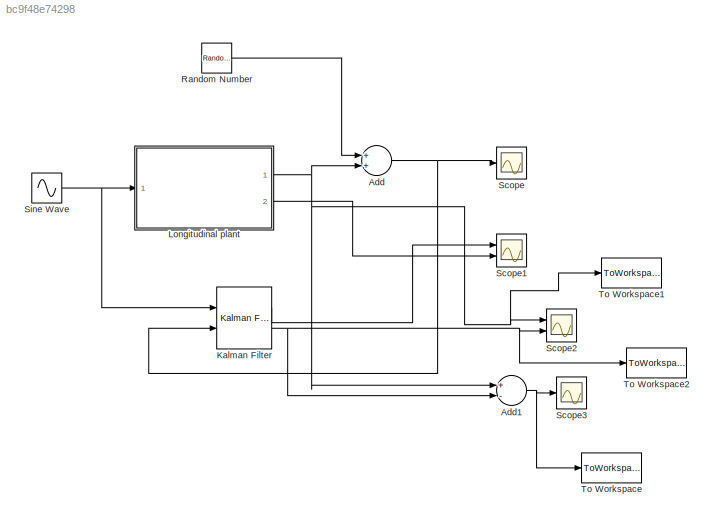
MODEL slx_bc9f48e74298
KIND model
CONFIG AbsTol = auto
CONFIG EnableMultiTasking = off
CONFIG FixedStep = auto
CONFIG MaxStep = auto
CONFIG MinStep = auto
CONFIG RelTol = 1e-3
CONFIG SampleTimeConstraint = Unconstrained
CONFIG Solver = VariableStepAuto
CONFIG SolverName = VariableStepAuto
CONFIG StartTime = 0.0
CONFIG StopTime = 100
BLOCK [Sum] Add
  InputSameDT = off
  OutDataTypeStr = Inherit: Inherit via internal rule
  Ports = [2, 1]
  SaturateOnIntegerOverflow = off
BLOCK [Sum] Add1
  InputSameDT = off
  Inputs = +-
  OutDataTypeStr = Inherit: Inherit via internal rule
  Ports = [2, 1]
  SaturateOnIntegerOverflow = off
BLOCK [Reference] Kalman Filter  REF=ctrlSharedLib/Kalman Filter
  Ports = [2, 2]
  SourceBlock = ctrlSharedLib/Kalman Filter
  SourceType = ctrlKalmanFilter
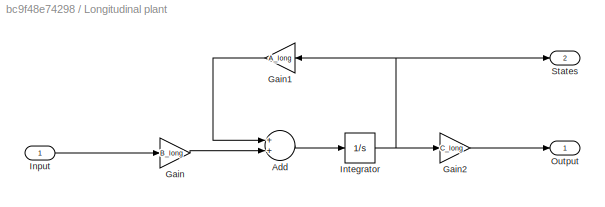
BLOCK [SubSystem] Longitudinal plant
  Ports = [1, 2]
  RequestExecContextInheritance = off
  Variant = off
BLOCK [Sum] Longitudinal plant/Add
  InputSameDT = off
  OutDataTypeStr = Inherit: Inherit via internal rule
  Ports = [2, 1]
  SaturateOnIntegerOverflow = off
BLOCK [Gain] Longitudinal plant/Gain
  Gain = B_long
  Multiplication = Matrix(K*u)
  OutDataTypeStr = Inherit: Inherit via internal rule
  ParamDataTypeStr = Inherit: Inherit via internal rule
  SaturateOnIntegerOverflow = off
BLOCK [Gain] Longitudinal plant/Gain1
  Gain = A_long
  Multiplication = Matrix(K*u)
  OutDataTypeStr = Inherit: Inherit via internal rule
  ParamDataTypeStr = Inherit: Inherit via internal rule
  SaturateOnIntegerOverflow = off
BLOCK [Gain] Longitudinal plant/Gain2
  Gain = C_long
  Multiplication = Matrix(K*u)
  OutDataTypeStr = Inherit: Inherit via internal rule
  ParamDataTypeStr = Inherit: Inherit via internal rule
  SaturateOnIntegerOverflow = off
BLOCK [Inport] Longitudinal plant/Input
  IconDisplay = Port number
BLOCK [Integrator] Longitudinal plant/Integrator
  Ports = [1, 1]
BLOCK [Outport] Longitudinal plant/Output
  IconDisplay = Port number
BLOCK [Outport] Longitudinal plant/States
  IconDisplay = Port number
  Port = 2
BLOCK [RandomNumber] Random Number
  SampleTime = 0.01
  Variance = 1e-8
BLOCK [Scope] Scope
  NumInputPorts = 1
  Ports = [1]
  ScopeSpecificationString = Simulink.scopes.TimeScopeBlockCfg('CurrentConfiguration', extmgr.ConfigurationSet(extmgr.Configuration('Core','General UI',true),extmgr.Configuration('Core','Source UI',true),extmgr.Configuration('Sources','WiredSimulink',true),extmgr.Configuration('Visuals','Time Domain',true,'SerializedDisplays',{struct('MinYLimReal','-0.00036','MaxYLimReal','0.00095','YLabelReal','','MinYLimMag','0.00000','MaxY...<+1356ch>
BLOCK [Scope] Scope1
  NumInputPorts = 2
  Ports = [2]
  ScopeSpecificationString = Simulink.scopes.TimeScopeBlockCfg('CurrentConfiguration', extmgr.ConfigurationSet(extmgr.Configuration('Core','General UI',true),extmgr.Configuration('Core','Source UI',true),extmgr.Configuration('Sources','WiredSimulink',true,'DataLoggingVariableName','ScopeData1'),extmgr.Configuration('Visuals','Time Domain',true,'SerializedDisplays',{struct('MinYLimReal','-0.22962','MaxYLimReal','0.18452','YLab...<+1543ch>
BLOCK [Scope] Scope2
  NumInputPorts = 2
  Ports = [2]
  ScopeSpecificationString = Simulink.scopes.TimeScopeBlockCfg('CurrentConfiguration', extmgr.ConfigurationSet(extmgr.Configuration('Core','General UI',true),extmgr.Configuration('Core','Source UI',true),extmgr.Configuration('Sources','WiredSimulink',true,'DataLoggingVariableName','ScopeData1'),extmgr.Configuration('Visuals','Time Domain',true,'SerializedDisplays',{struct('MinYLimReal','-0.00007','MaxYLimReal','0.00061','YLab...<+1501ch>
BLOCK [Scope] Scope3
  NumInputPorts = 1
  Ports = [1]
  ScopeSpecificationString = Simulink.scopes.TimeScopeBlockCfg('CurrentConfiguration', extmgr.ConfigurationSet(extmgr.Configuration('Core','General UI',true),extmgr.Configuration('Core','Source UI',true),extmgr.Configuration('Sources','WiredSimulink',true,'DataLoggingVariableName','ScopeData2'),extmgr.Configuration('Visuals','Time Domain',true,'SerializedDisplays',{struct('MinYLimReal','-0.000039','MaxYLimReal','0.00003','YLa...<+1402ch>
BLOCK [Sin] Sine Wave
  Amplitude = 0.1
  Frequency = 5
  Ports = [0, 1]
  SampleTime = 0
BLOCK [ToWorkspace] To Workspace
  FixptAsFi = on
  MaxDataPoints = inf
  Ports = [1]
  SampleTime = 0.001
  Save2DSignal = 2-D array (concatenate along first dimension)
  VariableName = Kalman_pitch_error
BLOCK [ToWorkspace] To Workspace1
  FixptAsFi = on
  MaxDataPoints = inf
  Ports = [1]
  SampleTime = 0.001
  Save2DSignal = 2-D array (concatenate along first dimension)
  VariableName = True_pitch
BLOCK [ToWorkspace] To Workspace2
  FixptAsFi = on
  MaxDataPoints = inf
  Ports = [1]
  SampleTime = 0.001
  Save2DSignal = 2-D array (concatenate along first dimension)
  VariableName = Kalman_pitch
NET Add1:1 -> Scope3:1, To Workspace:1
NET Add:1 -> Kalman Filter:2, Scope:1
LINE Kalman Filter:1 -> Scope1:1
NET Kalman Filter:2 -> Add1:2, Scope2:2, To Workspace2:1
LINE Longitudinal plant/Add:1 -> Longitudinal plant/Integrator:1
LINE Longitudinal plant/Gain1:1 -> Longitudinal plant/Add:1
LINE Longitudinal plant/Gain2:1 -> Longitudinal plant/Output:1
LINE Longitudinal plant/Gain:1 -> Longitudinal plant/Add:2
LINE Longitudinal plant/Input:1 -> Longitudinal plant/Gain:1
NET Longitudinal plant/Integrator:1 -> Longitudinal plant/Gain1:1, Longitudinal plant/Gain2:1, Longitudinal plant/States:1
NET Longitudinal plant:1 -> Add1:1, Add:2, Scope2:1, To Workspace1:1
LINE Longitudinal plant:2 -> Scope1:2
LINE Random Number:1 -> Add:1
NET Sine Wave:1 -> Kalman Filter:1, Longitudinal plant:1
note: NET lines group one-source signal fan-out (src -> all destinations, sorted); 1:1 wires keep LINE
